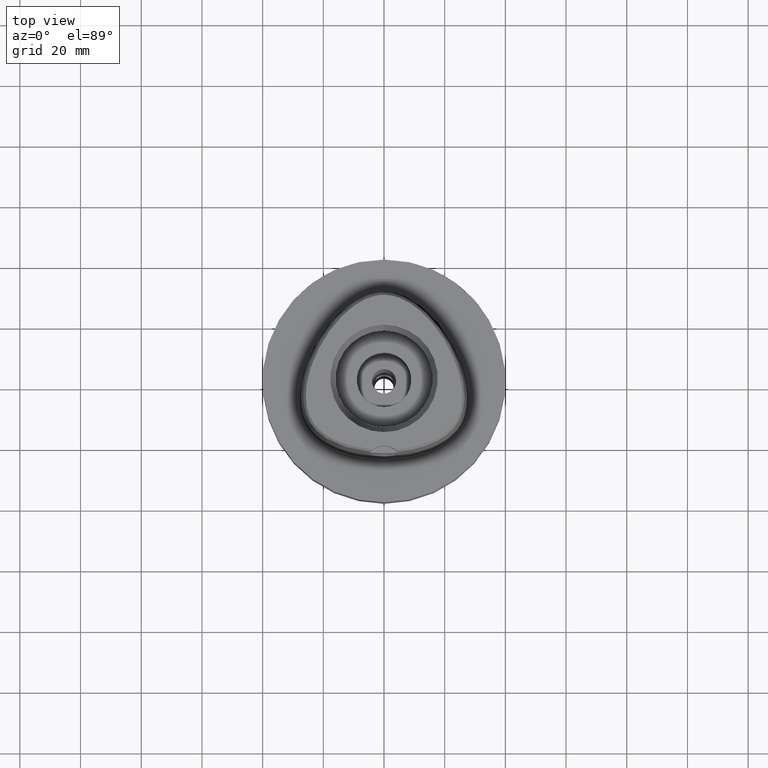
[diagram: clean part render]
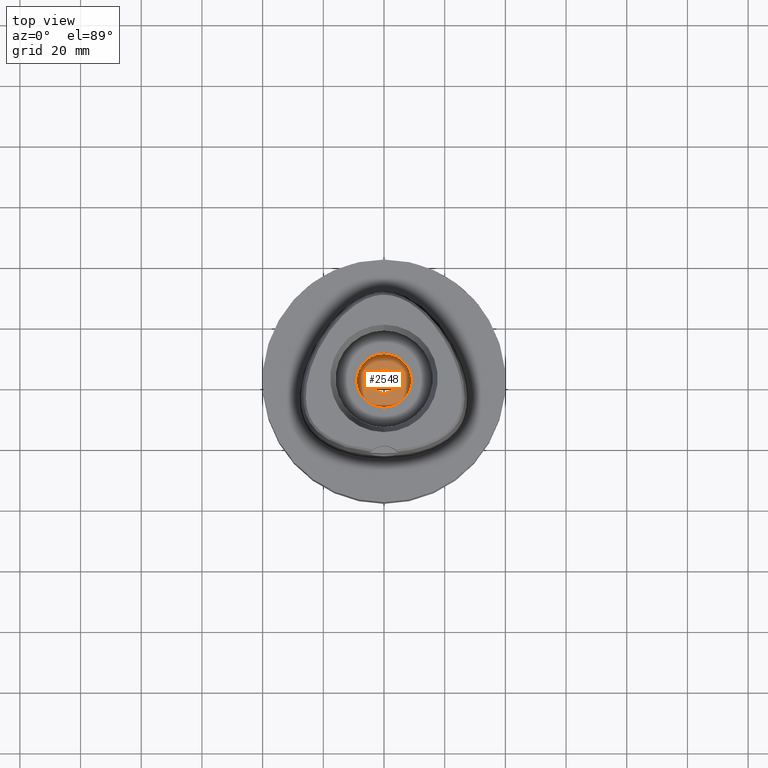
[diagram: same view with one face highlighted and labeled with its STEP entity id]
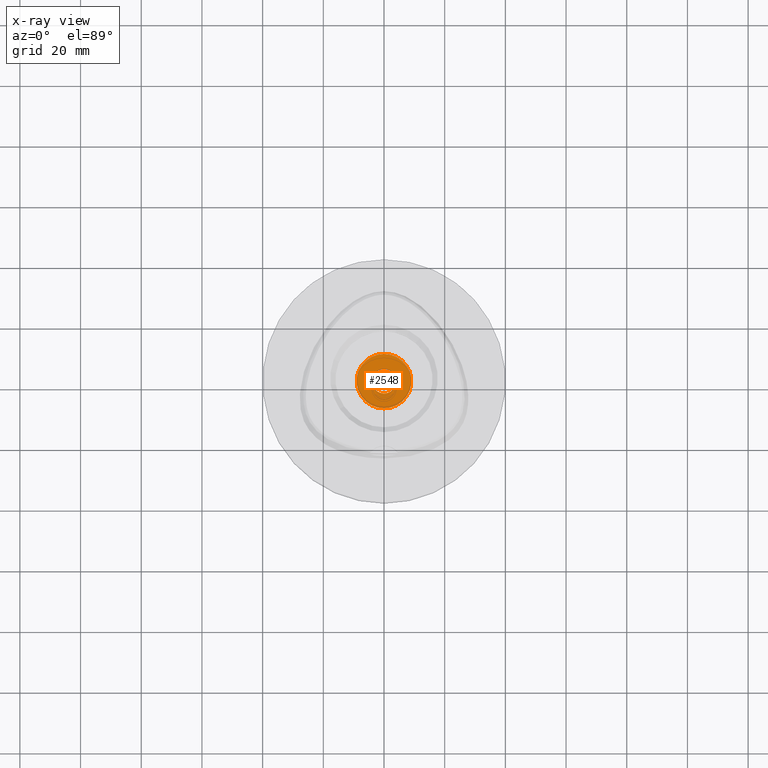
[diagram: x-ray of the same camera — body ghosted, the highlighted face saturated]
A machine part, top view. The second image highlights one B-rep face of the part: STEP entity #2548.
The next image is the same camera in x-ray: the body ghosted, the highlighted face saturated — about 0% of this face is hidden behind the body in this view.
In plain terms, the highlighted planar face has unit normal (0, 0, -1).
Its self-contained STEP definition (entity closure, byte-faithful):
#6 = DIRECTION ( 'NONE',  ( 0.0000000000000000000, 1.000000000000000000, 0.0000000000000000000 ) ) ;
#149 = CARTESIAN_POINT ( 'NONE',  ( 0.0000000000000000000, 1.138921523206999959E-14, -7.000000000000000000 ) ) ;
#353 = VERTEX_POINT ( 'NONE', #4679 ) ;
#364 = EDGE_LOOP ( 'NONE', ( #3043, #3664 ) ) ;
#509 = DIRECTION ( 'NONE',  ( 0.0000000000000000000, 0.0000000000000000000, 1.000000000000000000 ) ) ;
#619 = VERTEX_POINT ( 'NONE', #4102 ) ;
#623 = DIRECTION ( 'NONE',  ( 0.0000000000000000000, -1.000000000000000000, 0.0000000000000000000 ) ) ;
#712 = CARTESIAN_POINT ( 'NONE',  ( 0.0000000000000000000, 0.0000000000000000000, -7.000000000000000000 ) ) ;
#778 = AXIS2_PLACEMENT_3D ( 'NONE', #3636, #509, #4467 ) ;
#867 = EDGE_CURVE ( 'NONE', #353, #619, #1201, .T. ) ;
#997 = ORIENTED_EDGE ( 'NONE', *, *, #3657, .F. ) ;
#1071 = ORIENTED_EDGE ( 'NONE', *, *, #1220, .F. ) ;
#1137 = AXIS2_PLACEMENT_3D ( 'NONE', #149, #4914, #623 ) ;
#1201 = CIRCLE ( 'NONE', #778, 4.000000000000000000 ) ;
#1220 = EDGE_CURVE ( 'NONE', #2965, #4255, #1860, .T. ) ;
#1343 = DIRECTION ( 'NONE',  ( 0.0000000000000000000, 0.0000000000000000000, -1.000000000000000000 ) ) ;
#1466 = AXIS2_PLACEMENT_3D ( 'NONE', #5141, #2059, #6 ) ;
#1720 = CIRCLE ( 'NONE', #1466, 4.000000000000000000 ) ;
#1860 = CIRCLE ( 'NONE', #2531, 9.000000000000000000 ) ;
#2004 = EDGE_CURVE ( 'NONE', #619, #353, #1720, .T. ) ;
#2059 = DIRECTION ( 'NONE',  ( 0.0000000000000000000, 0.0000000000000000000, 1.000000000000000000 ) ) ;
#2147 = FACE_OUTER_BOUND ( 'NONE', #4564, .T. ) ;
#2531 = AXIS2_PLACEMENT_3D ( 'NONE', #712, #2748, #3129 ) ;
#2548 = ADVANCED_FACE ( 'NONE', ( #2147, #3314 ), #3726, .F. ) ;
#2748 = DIRECTION ( 'NONE',  ( 0.0000000000000000000, 0.0000000000000000000, -1.000000000000000000 ) ) ;
#2965 = VERTEX_POINT ( 'NONE', #4866 ) ;
#3043 = ORIENTED_EDGE ( 'NONE', *, *, #2004, .F. ) ;
#3129 = DIRECTION ( 'NONE',  ( 0.0000000000000000000, 1.000000000000000000, 0.0000000000000000000 ) ) ;
#3269 = DIRECTION ( 'NONE',  ( 0.0000000000000000000, -1.000000000000000000, 0.0000000000000000000 ) ) ;
#3308 = CARTESIAN_POINT ( 'NONE',  ( 0.0000000000000000000, -9.000000000000000000, -7.000000000000000000 ) ) ;
#3314 = FACE_BOUND ( 'NONE', #364, .T. ) ;
#3315 = CARTESIAN_POINT ( 'NONE',  ( 0.0000000000000000000, 0.0000000000000000000, -7.000000000000000000 ) ) ;
#3636 = CARTESIAN_POINT ( 'NONE',  ( 0.0000000000000000000, 1.320781572880000066E-14, -7.000000000000000000 ) ) ;
#3657 = EDGE_CURVE ( 'NONE', #4255, #2965, #3699, .T. ) ;
#3664 = ORIENTED_EDGE ( 'NONE', *, *, #867, .F. ) ;
#3699 = CIRCLE ( 'NONE', #4534, 9.000000000000000000 ) ;
#3726 = PLANE ( 'NONE',  #1137 ) ;
#4102 = CARTESIAN_POINT ( 'NONE',  ( 0.0000000000000000000, 4.000000000000000000, -7.000000000000000000 ) ) ;
#4255 = VERTEX_POINT ( 'NONE', #3308 ) ;
#4467 = DIRECTION ( 'NONE',  ( 0.0000000000000000000, -1.000000000000000000, 0.0000000000000000000 ) ) ;
#4534 = AXIS2_PLACEMENT_3D ( 'NONE', #3315, #1343, #3269 ) ;
#4564 = EDGE_LOOP ( 'NONE', ( #1071, #997 ) ) ;
#4679 = CARTESIAN_POINT ( 'NONE',  ( 0.0000000000000000000, -4.000000000000000000, -7.000000000000000000 ) ) ;
#4866 = CARTESIAN_POINT ( 'NONE',  ( 0.0000000000000000000, 9.000000000000000000, -7.000000000000000000 ) ) ;
#4914 = DIRECTION ( 'NONE',  ( 0.0000000000000000000, 0.0000000000000000000, -1.000000000000000000 ) ) ;
#5141 = CARTESIAN_POINT ( 'NONE',  ( 0.0000000000000000000, 1.320781572880000066E-14, -7.000000000000000000 ) ) ;